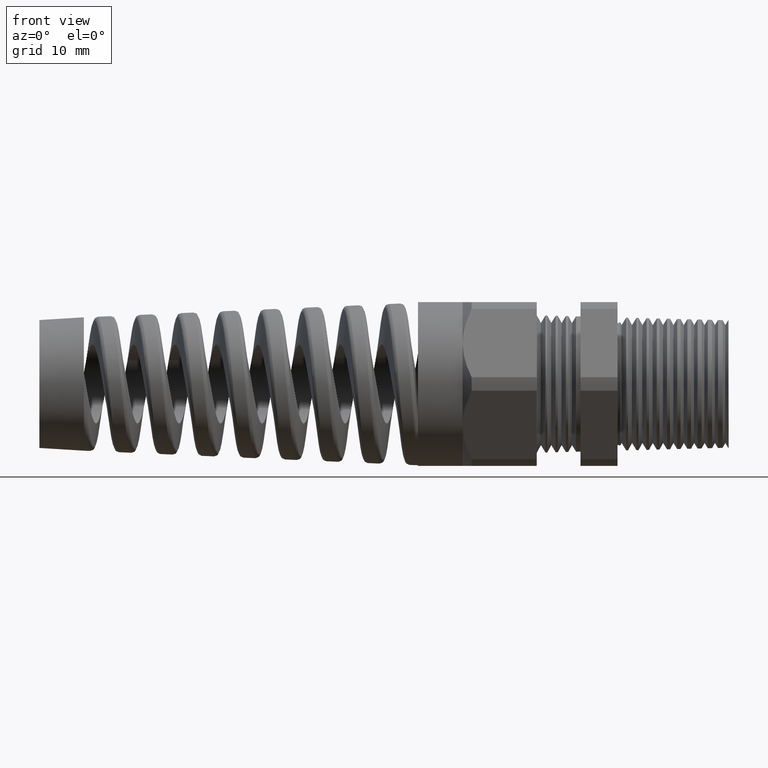
[diagram: clean part render]
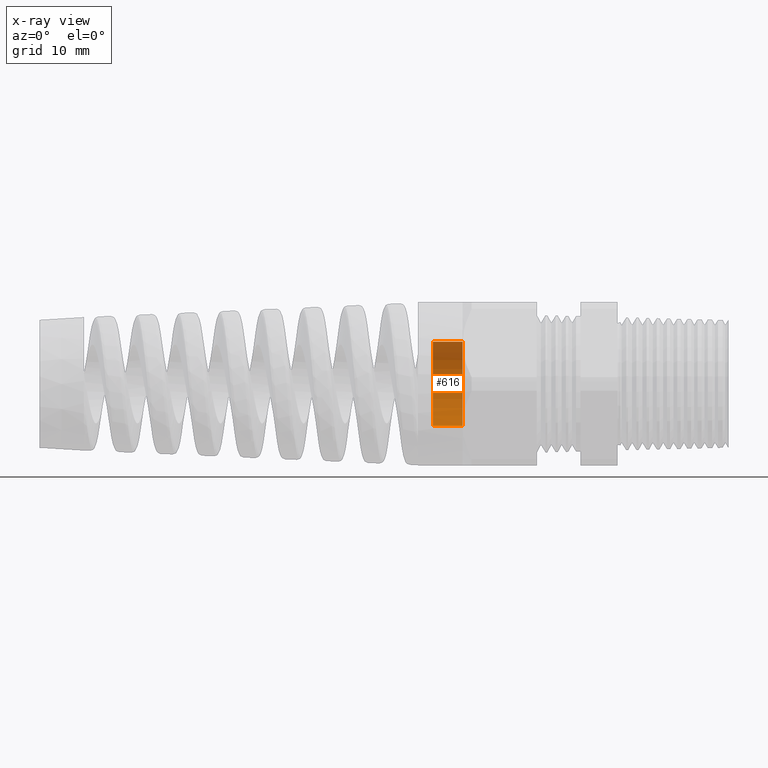
[diagram: x-ray — body ghosted, one internal face saturated and labeled with its STEP entity id]
A machine part, front view, then the same camera in x-ray: the body is ghosted and one INTERNAL B-rep face — a face not visible from any outside direction — is saturated and labeled: STEP entity #616.
In plain terms, the highlighted cylindrical surface (partial cylindrical patch) has radius 5.69 mm, axis along (1, 0, 0).
Its self-contained STEP definition (entity closure, byte-faithful):
#571 = EDGE_LOOP ( 'NONE', ( #572, #573, #575, #727 ) ) ;
#572 = ORIENTED_EDGE ( 'NONE', *, *, #1589, .F. ) ;
#573 = ORIENTED_EDGE ( 'NONE', *, *, #574, .T. ) ;
#574 = EDGE_CURVE ( 'NONE', #1454, #1462, #2010, .T. ) ;
#575 = ORIENTED_EDGE ( 'NONE', *, *, #1461, .T. ) ;
#616 = ADVANCED_FACE ( 'NONE', ( #1844 ), #1843, .F. ) ;
#727 = ORIENTED_EDGE ( 'NONE', *, *, #15485, .T. ) ;
#1454 = VERTEX_POINT ( 'NONE', #13337 ) ;
#1461 = EDGE_CURVE ( 'NONE', #1462, #1478, #13500, .T. ) ;
#1462 = VERTEX_POINT ( 'NONE', #13496 ) ;
#1478 = VERTEX_POINT ( 'NONE', #13447 ) ;
#1589 = EDGE_CURVE ( 'NONE', #1454, #1590, #13574, .T. ) ;
#1590 = VERTEX_POINT ( 'NONE', #13570 ) ;
#1831 = DIRECTION ( 'NONE',  ( 0.0000000000000000000, 0.0000000000000000000, -1.000000000000000000 ) ) ;
#1832 = DIRECTION ( 'NONE',  ( 1.000000000000000000, 0.0000000000000000000, 0.0000000000000000000 ) ) ;
#1833 = CARTESIAN_POINT ( 'NONE',  ( -1.369721211586352600, 0.0000000000000000000, 0.0000000000000000000 ) ) ;
#1834 = AXIS2_PLACEMENT_3D ( 'NONE', #1833, #1832, #1831 ) ;
#1843 = CYLINDRICAL_SURFACE ( 'NONE', #1834, 0.2240167598129607900 ) ;
#1844 = FACE_OUTER_BOUND ( 'NONE', #571, .T. ) ;
#2006 = DIRECTION ( 'NONE',  ( 0.0000000000000000000, 0.0000000000000000000, -1.000000000000000000 ) ) ;
#2007 = DIRECTION ( 'NONE',  ( -1.000000000000000000, 0.0000000000000000000, 0.0000000000000000000 ) ) ;
#2008 = CARTESIAN_POINT ( 'NONE',  ( -1.290000000000000300, 0.0000000000000000000, 0.0000000000000000000 ) ) ;
#2009 = AXIS2_PLACEMENT_3D ( 'NONE', #2008, #2007, #2006 ) ;
#2010 = CIRCLE ( 'NONE', #2009, 0.2240167598129607900 ) ;
#13337 = CARTESIAN_POINT ( 'NONE',  ( -1.290000000000000300, 2.743414078603038600E-017, 0.2240167598129607900 ) ) ;
#13447 = CARTESIAN_POINT ( 'NONE',  ( -1.132519685039370200, 0.0000000000000000000, -0.2240167598129607900 ) ) ;
#13496 = CARTESIAN_POINT ( 'NONE',  ( -1.290000000000000300, 0.0000000000000000000, -0.2240167598129607900 ) ) ;
#13497 = DIRECTION ( 'NONE',  ( 1.000000000000000000, 0.0000000000000000000, 0.0000000000000000000 ) ) ;
#13498 = VECTOR ( 'NONE', #13497, 39.37007874015748100 ) ;
#13499 = CARTESIAN_POINT ( 'NONE',  ( -1.369721211586352600, 0.0000000000000000000, -0.2240167598129607900 ) ) ;
#13500 = LINE ( 'NONE', #13499, #13498 ) ;
#13570 = CARTESIAN_POINT ( 'NONE',  ( -1.132519685039370200, 2.743414078603038600E-017, 0.2240167598129607900 ) ) ;
#13571 = DIRECTION ( 'NONE',  ( 1.000000000000000000, 0.0000000000000000000, 0.0000000000000000000 ) ) ;
#13572 = VECTOR ( 'NONE', #13571, 39.37007874015748100 ) ;
#13573 = CARTESIAN_POINT ( 'NONE',  ( -1.369721211586352600, 2.743414078603038600E-017, 0.2240167598129607900 ) ) ;
#13574 = LINE ( 'NONE', #13573, #13572 ) ;
#14309 = DIRECTION ( 'NONE',  ( 0.0000000000000000000, 0.0000000000000000000, 1.000000000000000000 ) ) ;
#14310 = DIRECTION ( 'NONE',  ( 1.000000000000000000, 0.0000000000000000000, 0.0000000000000000000 ) ) ;
#14311 = CARTESIAN_POINT ( 'NONE',  ( -1.132519685039370200, 0.0000000000000000000, 0.0000000000000000000 ) ) ;
#14312 = AXIS2_PLACEMENT_3D ( 'NONE', #14311, #14310, #14309 ) ;
#14313 = CIRCLE ( 'NONE', #14312, 0.2240167598129607900 ) ;
#15485 = EDGE_CURVE ( 'NONE', #1478, #1590, #14313, .T. ) ;